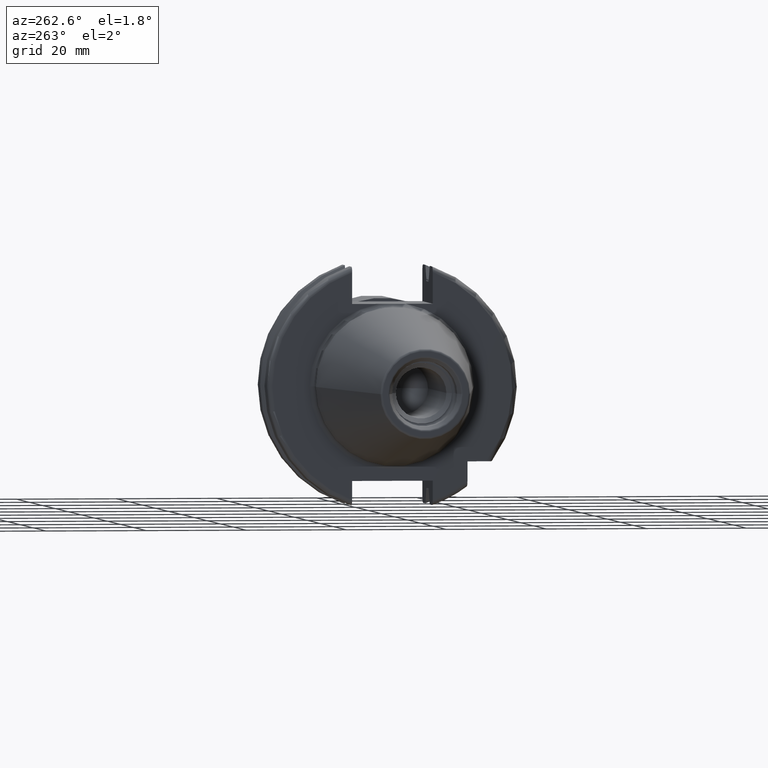
[diagram: clean part render]
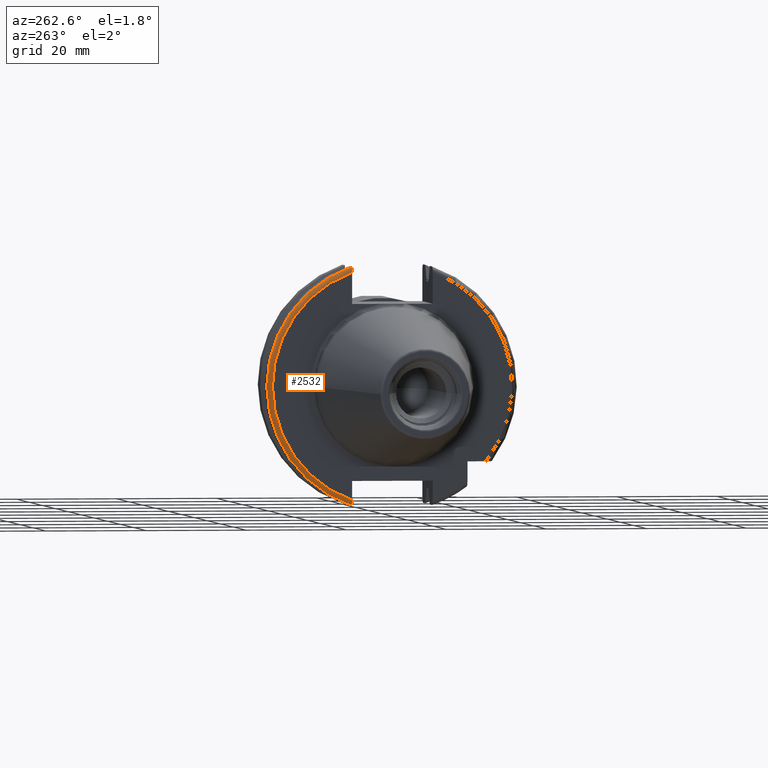
[diagram: same view with one face highlighted and labeled with its STEP entity id]
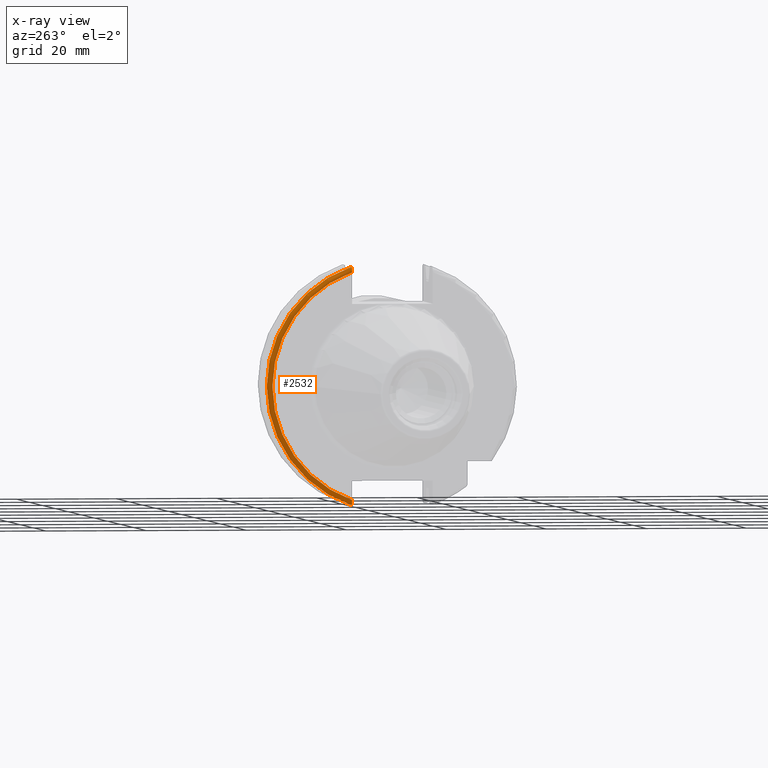
[diagram: x-ray of the same camera — body ghosted, the highlighted face saturated]
A machine part, auxiliary view. The second image highlights one B-rep face of the part: STEP entity #2532.
The next image is the same camera in x-ray: the body ghosted, the highlighted face saturated — about 0% of this face is hidden behind the body in this view.
In plain terms, the highlighted toroidal blend (fillet) surface has major radius 23.99 mm and minor (blend) radius 1 mm.
Its self-contained STEP definition (entity closure, byte-faithful):
#936=CARTESIAN_POINT('',(3.2E0,0.E0,0.E0));
#937=DIRECTION('',(-1.E0,0.E0,0.E0));
#938=DIRECTION('',(0.E0,3.355564818674E-1,9.420200886800E-1));
#939=AXIS2_PLACEMENT_3D('',#936,#937,#938);
#941=CARTESIAN_POINT('',(4.2E0,8.05E0,-2.365792890344E1));
#942=CARTESIAN_POINT('',(4.122127712833E0,8.05E0,-2.365792890344E1));
#943=CARTESIAN_POINT('',(3.971182683137E0,8.05E0,-2.363930307718E1));
#944=CARTESIAN_POINT('',(3.753345142709E0,8.05E0,-2.355708587001E1));
#945=CARTESIAN_POINT('',(3.561524648547E0,8.05E0,-2.342607287402E1));
#946=CARTESIAN_POINT('',(3.404779764413E0,8.05E0,-2.325597290451E1));
#947=CARTESIAN_POINT('',(3.288453220846E0,8.05E0,-2.305568112926E1));
#948=CARTESIAN_POINT('',(3.216617784360E0,8.05E0,-2.283396543716E1));
#949=CARTESIAN_POINT('',(3.2E0,8.05E0,-2.267895714932E1));
#950=CARTESIAN_POINT('',(3.2E0,8.05E0,-2.259906192743E1));
#952=CARTESIAN_POINT('',(4.2E0,0.E0,0.E0));
#953=DIRECTION('',(1.E0,0.E0,0.E0));
#954=DIRECTION('',(0.E0,3.221288515406E-1,-9.466958344712E-1));
#955=AXIS2_PLACEMENT_3D('',#952,#953,#954);
#957=CARTESIAN_POINT('',(3.2E0,8.05E0,2.259906192743E1));
#958=CARTESIAN_POINT('',(3.2E0,8.05E0,2.267926233796E1));
#959=CARTESIAN_POINT('',(3.216724472539E0,8.05E0,2.283487612349E1));
#960=CARTESIAN_POINT('',(3.289318572837E0,8.05E0,2.305785531284E1));
#961=CARTESIAN_POINT('',(3.406709259601E0,8.05E0,2.325865402046E1));
#962=CARTESIAN_POINT('',(3.564067010659E0,8.05E0,2.342822088815E1));
#963=CARTESIAN_POINT('',(3.755500258931E0,8.05E0,2.355808657354E1));
#964=CARTESIAN_POINT('',(3.972085812479E0,8.05E0,2.363942333926E1));
#965=CARTESIAN_POINT('',(4.122434247216E0,8.05E0,2.365792890344E1));
#966=CARTESIAN_POINT('',(4.2E0,8.05E0,2.365792890344E1));
#1383=CARTESIAN_POINT('',(4.2E0,8.05E0,2.365792890344E1));
#1384=VERTEX_POINT('',#1383);
#1387=CARTESIAN_POINT('',(3.2E0,8.05E0,-2.259906192743E1));
#1389=VERTEX_POINT('',#1387);
#1405=CARTESIAN_POINT('',(3.2E0,8.05E0,2.259906192743E1));
#1406=VERTEX_POINT('',#1405);
#1413=CARTESIAN_POINT('',(4.2E0,8.05E0,-2.365792890344E1));
#1414=VERTEX_POINT('',#1413);
#2520=CARTESIAN_POINT('',(4.2E0,0.E0,0.E0));
#2521=DIRECTION('',(1.E0,0.E0,0.E0));
#2522=DIRECTION('',(0.E0,-1.E0,0.E0));
#2523=AXIS2_PLACEMENT_3D('',#2520,#2521,#2522);
#2524=TOROIDAL_SURFACE('',#2523,2.399E1,1.E0);
#2526=ORIENTED_EDGE('',*,*,#2525,.T.);
#2527=ORIENTED_EDGE('',*,*,#1943,.F.);
#2528=ORIENTED_EDGE('',*,*,#2265,.T.);
#2529=ORIENTED_EDGE('',*,*,#1673,.F.);
#2530=EDGE_LOOP('',(#2526,#2527,#2528,#2529));
#2531=FACE_OUTER_BOUND('',#2530,.F.);
#2532=ADVANCED_FACE('',(#2531),#2524,.T.);
#940=CIRCLE('',#939,2.399E1);
#951=B_SPLINE_CURVE_WITH_KNOTS('',3,(#941,#942,#943,#944,#945,#946,#947,#948,
#949,#950),.UNSPECIFIED.,.F.,.F.,(4,1,1,1,1,1,1,4),(0.E0,1.428571428571E-1,
2.857142857143E-1,4.285714285714E-1,5.714285714286E-1,7.142857142857E-1,
8.571428571429E-1,1.E0),.UNSPECIFIED.);
#956=CIRCLE('',#955,2.499E1);
#967=B_SPLINE_CURVE_WITH_KNOTS('',3,(#957,#958,#959,#960,#961,#962,#963,#964,
#965,#966),.UNSPECIFIED.,.F.,.F.,(4,1,1,1,1,1,1,4),(0.E0,1.428571428571E-1,
2.857142857143E-1,4.285714285714E-1,5.714285714286E-1,7.142857142857E-1,
8.571428571429E-1,1.E0),.UNSPECIFIED.);
#1673=EDGE_CURVE('',#1406,#1384,#967,.T.);
#1943=EDGE_CURVE('',#1414,#1389,#951,.T.);
#2265=EDGE_CURVE('',#1414,#1384,#956,.T.);
#2525=EDGE_CURVE('',#1406,#1389,#940,.T.);